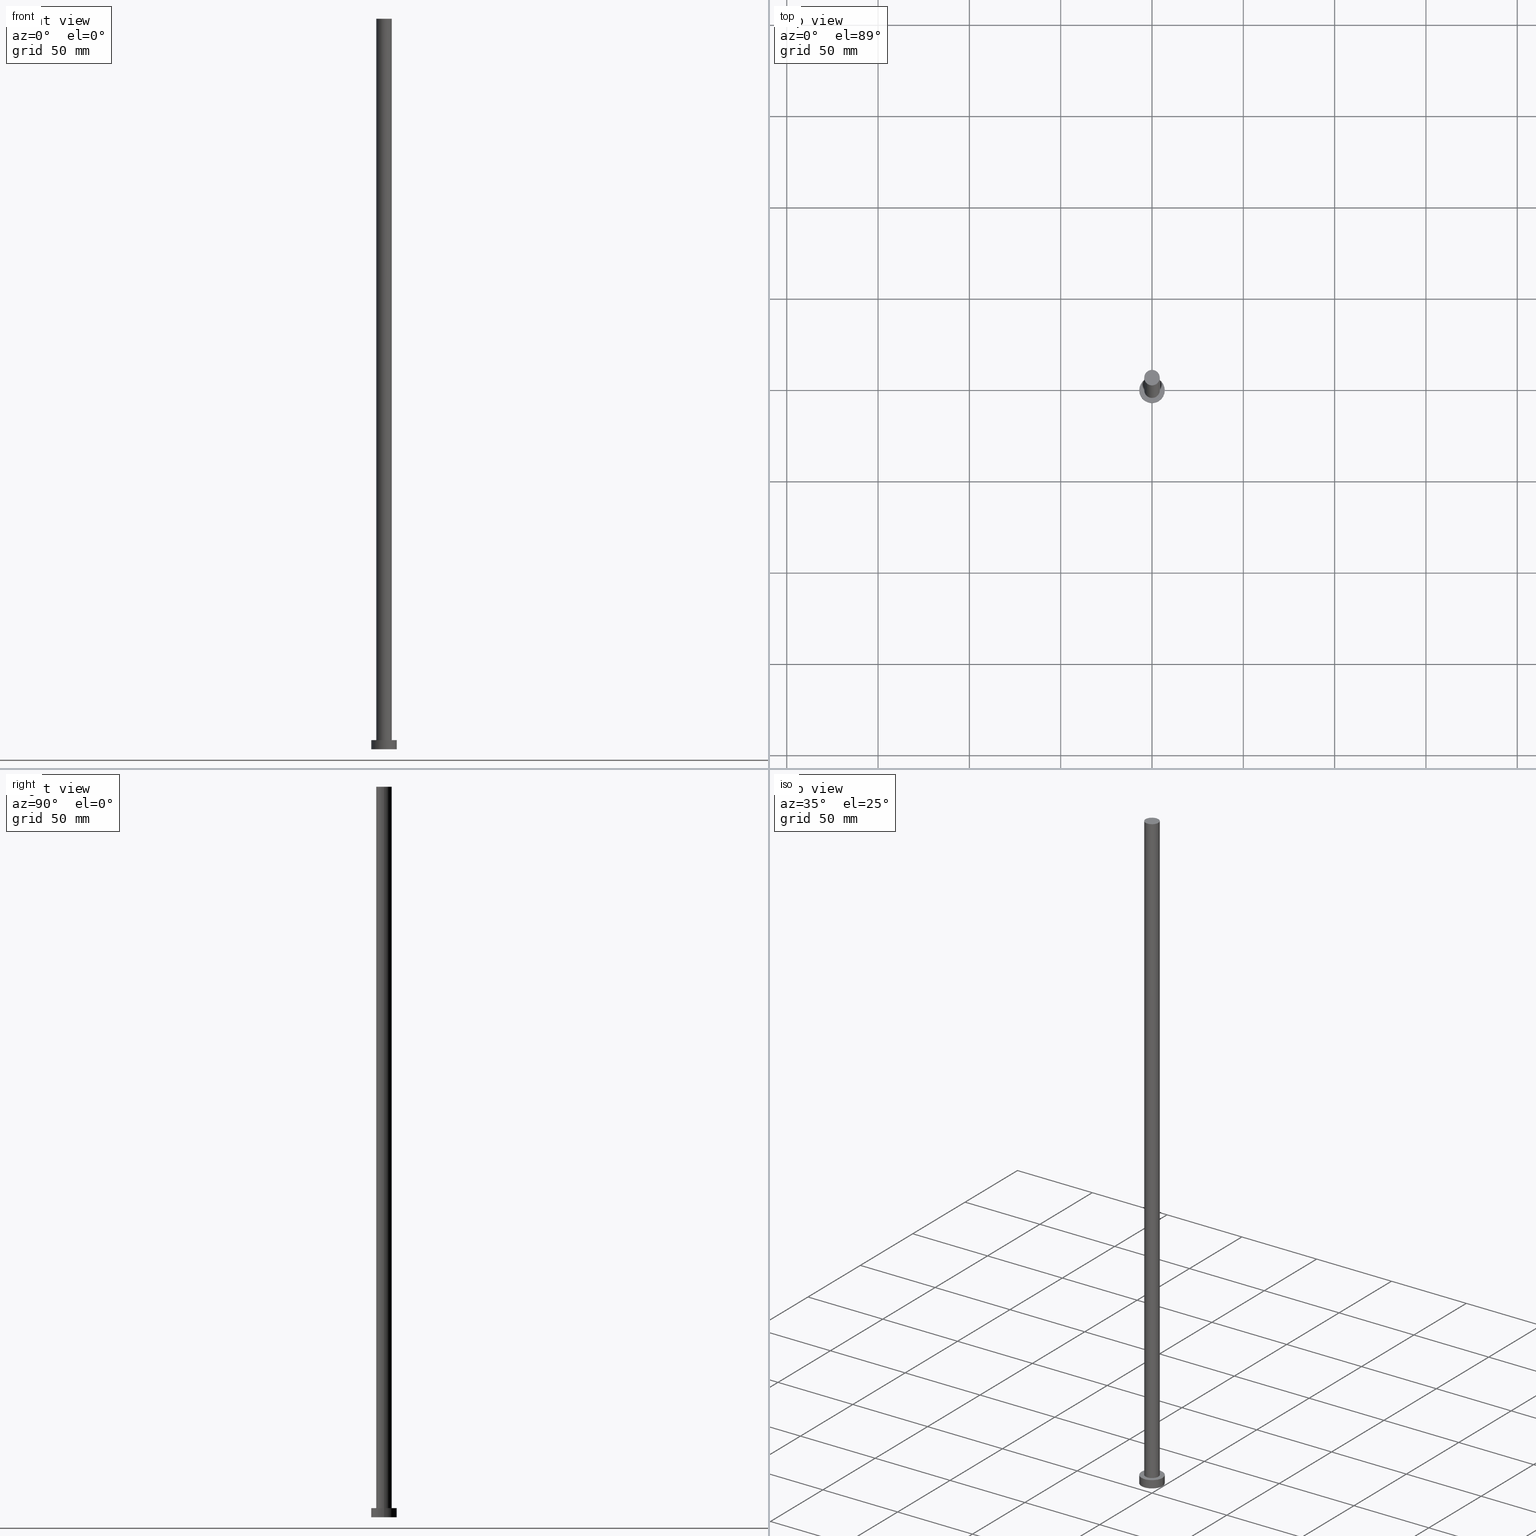
[diagram: canonical four-view strip — front | top / right | iso, engineering-drawing reading convention]
A machine part, canonical four-view strip (front | top / right | iso — engineering-drawing reading convention). The complete STEP part file that produces these views, byte-faithful:
ISO-10303-21;
HEADER;
FILE_DESCRIPTION (( 'STEP AP203' ),
    '1' );
FILE_NAME ('ba1e.STEP',
    '2023-02-12T11:09:58',
    ( '' ),
    ( '' ),
    'SwSTEP 2.0',
    'SolidWorks 2019',
    '' );
FILE_SCHEMA (( 'CONFIG_CONTROL_DESIGN' ));
ENDSEC;

DATA;
#1 = FACE_OUTER_BOUND ( 'NONE', #241, .T. ) ;
#2 = LOCAL_TIME ( 12, 9, 57.00000000000000000, #186 ) ;
#3 = DIRECTION ( 'NONE',  ( 0.000000000000000000, 0.000000000000000000, 1.000000000000000000 ) ) ;
#4 = CARTESIAN_POINT ( 'NONE',  ( -4.250000000000000000, 0.000000000000000000, 5.000000000000000000 ) ) ;
#5 = CARTESIAN_POINT ( 'NONE',  ( 0.000000000000000000, 0.000000000000000000, 5.000000000000000000 ) ) ;
#6 = EDGE_CURVE ( 'NONE', #70, #217, #150, .T. ) ;
#7 = FACE_OUTER_BOUND ( 'NONE', #199, .T. ) ;
#8 = APPROVAL ( #37, 'NEUR�EN�' ) ;
#9 = ORIENTED_EDGE ( 'NONE', *, *, #6, .T. ) ;
#10 = CARTESIAN_POINT ( 'NONE',  ( 0.000000000000000000, 0.000000000000000000, 0.000000000000000000 ) ) ;
#11 = COORDINATED_UNIVERSAL_TIME_OFFSET ( 1, 0, .AHEAD. ) ;
#12 = CARTESIAN_POINT ( 'NONE',  ( -7.000000000000000000, 0.000000000000000000, 5.000000000000000000 ) ) ;
#13 = DIRECTION ( 'NONE',  ( 0.000000000000000000, 0.000000000000000000, 1.000000000000000000 ) ) ;
#14 = DATE_AND_TIME ( #205, #35 ) ;
#15 = LOCAL_TIME ( 12, 9, 57.00000000000000000, #95 ) ;
#16 = CYLINDRICAL_SURFACE ( 'NONE', #167, 7.000000000000000000 ) ;
#17 = DESIGN_CONTEXT ( 'detailed design', #210, 'design' ) ;
#18 = PERSON_AND_ORGANIZATION ( #151, #46 ) ;
#19 = CIRCLE ( 'NONE', #134, 4.250000000000000000 ) ;
#20 = DIRECTION ( 'NONE',  ( 1.000000000000000000, 0.000000000000000000, -0.000000000000000000 ) ) ;
#21 = ORIENTED_EDGE ( 'NONE', *, *, #207, .F. ) ;
#22 = CIRCLE ( 'NONE', #126, 7.000000000000000000 ) ;
#23 = EDGE_CURVE ( 'NONE', #155, #250, #99, .T. ) ;
#24 = ORIENTED_EDGE ( 'NONE', *, *, #44, .T. ) ;
#25 = PLANE ( 'NONE',  #43 ) ;
#26 = ORIENTED_EDGE ( 'NONE', *, *, #23, .T. ) ;
#27 = CC_DESIGN_PERSON_AND_ORGANIZATION_ASSIGNMENT ( #77, #237, ( #60 ) ) ;
#28 = CALENDAR_DATE ( 2023, 12, 2 ) ;
#29 = CARTESIAN_POINT ( 'NONE',  ( 0.000000000000000000, 0.000000000000000000, 400.0000000000000000 ) ) ;
#30 = DATE_AND_TIME ( #227, #2 ) ;
#31 = PRODUCT ( 'ba1e', 'ba1e', '', ( #108 ) ) ;
#32 = DIRECTION ( 'NONE',  ( 0.000000000000000000, 0.000000000000000000, 1.000000000000000000 ) ) ;
#33 = PERSON_AND_ORGANIZATION_ROLE ( 'design_owner' ) ;
#34 = CARTESIAN_POINT ( 'NONE',  ( 0.000000000000000000, 0.000000000000000000, 400.0000000000000000 ) ) ;
#35 = LOCAL_TIME ( 12, 9, 57.00000000000000000, #91 ) ;
#36 = DIRECTION ( 'NONE',  ( 0.000000000000000000, 0.000000000000000000, 1.000000000000000000 ) ) ;
#37 = APPROVAL_STATUS ( 'not_yet_approved' ) ;
#38 = CARTESIAN_POINT ( 'NONE',  ( 4.250000000000000000, 5.204748896376249713E-16, 400.0000000000000000 ) ) ;
#39 = LINE ( 'NONE', #206, #179 ) ;
#40 = AXIS2_PLACEMENT_3D ( 'NONE', #102, #3, #20 ) ;
#41 = DIRECTION ( 'NONE',  ( -0.000000000000000000, -0.000000000000000000, -1.000000000000000000 ) ) ;
#42 = CARTESIAN_POINT ( 'NONE',  ( 0.000000000000000000, 0.000000000000000000, 5.000000000000000000 ) ) ;
#43 = AXIS2_PLACEMENT_3D ( 'NONE', #106, #83, #234 ) ;
#44 = EDGE_CURVE ( 'NONE', #250, #155, #19, .T. ) ;
#45 = ORIENTED_EDGE ( 'NONE', *, *, #114, .T. ) ;
#46 = ORGANIZATION ( 'NEUR�EN�', 'NEUR�EN�', '' ) ;
#47 = EDGE_LOOP ( 'NONE', ( #90, #224, #24, #21 ) ) ;
#48 = EDGE_LOOP ( 'NONE', ( #220, #45 ) ) ;
#49 = AXIS2_PLACEMENT_3D ( 'NONE', #29, #74, #113 ) ;
#50 = DIRECTION ( 'NONE',  ( 0.000000000000000000, 0.000000000000000000, 1.000000000000000000 ) ) ;
#51 = CIRCLE ( 'NONE', #238, 7.000000000000000000 ) ;
#52 = CC_DESIGN_APPROVAL ( #125, ( #158 ) ) ;
#53 = PERSON_AND_ORGANIZATION_ROLE ( 'design_supplier' ) ;
#54 = PLANE ( 'NONE',  #40 ) ;
#55 = DATE_AND_TIME ( #28, #175 ) ;
#56 = CC_DESIGN_PERSON_AND_ORGANIZATION_ASSIGNMENT ( #240, #76, ( #161 ) ) ;
#57 = DIRECTION ( 'NONE',  ( -1.000000000000000000, 0.000000000000000000, 0.000000000000000000 ) ) ;
#58 = FACE_OUTER_BOUND ( 'NONE', #110, .T. ) ;
#59 = LINE ( 'NONE', #214, #122 ) ;
#60 = PRODUCT_DEFINITION_FORMATION_WITH_SPECIFIED_SOURCE ( 'LIBOVOLN�', '', #31, .NOT_KNOWN. ) ;
#61 = DIRECTION ( 'NONE',  ( 0.000000000000000000, 0.000000000000000000, 1.000000000000000000 ) ) ;
#62 = EDGE_CURVE ( 'NONE', #217, #70, #173, .T. ) ;
#63 = CLOSED_SHELL ( 'NONE', ( #69, #146, #218, #103, #246, #128, #138 ) ) ;
#64 = AXIS2_PLACEMENT_3D ( 'NONE', #245, #61, #255 ) ;
#65 =( LENGTH_UNIT ( ) NAMED_UNIT ( * ) SI_UNIT ( .MILLI., .METRE. ) );
#66 = ORIENTED_EDGE ( 'NONE', *, *, #188, .F. ) ;
#67 = DIRECTION ( 'NONE',  ( 0.000000000000000000, 0.000000000000000000, 1.000000000000000000 ) ) ;
#68 = DIRECTION ( 'NONE',  ( -1.000000000000000000, 0.000000000000000000, 0.000000000000000000 ) ) ;
#69 = ADVANCED_FACE ( 'NONE', ( #136 ), #222, .T. ) ;
#70 = VERTEX_POINT ( 'NONE', #204 ) ;
#71 = PERSON_AND_ORGANIZATION_ROLE ( 'creator' ) ;
#72 = FACE_OUTER_BOUND ( 'NONE', #48, .T. ) ;
#73 = PERSON_AND_ORGANIZATION ( #151, #46 ) ;
#74 = DIRECTION ( 'NONE',  ( -0.000000000000000000, -0.000000000000000000, -1.000000000000000000 ) ) ;
#75 = CC_DESIGN_PERSON_AND_ORGANIZATION_ASSIGNMENT ( #144, #71, ( #158 ) ) ;
#76 = PERSON_AND_ORGANIZATION_ROLE ( 'classification_officer' ) ;
#77 = PERSON_AND_ORGANIZATION ( #151, #46 ) ;
#78 = DIRECTION ( 'NONE',  ( 0.000000000000000000, 0.000000000000000000, 1.000000000000000000 ) ) ;
#79 = VECTOR ( 'NONE', #183, 1000.000000000000000 ) ;
#80 = CIRCLE ( 'NONE', #137, 4.250000000000000000 ) ;
#81 = APPROVAL ( #251, 'NEUR�EN�' ) ;
#82 = DIRECTION ( 'NONE',  ( 1.000000000000000000, 0.000000000000000000, -0.000000000000000000 ) ) ;
#83 = DIRECTION ( 'NONE',  ( 0.000000000000000000, 0.000000000000000000, 1.000000000000000000 ) ) ;
#84 = CC_DESIGN_SECURITY_CLASSIFICATION ( #161, ( #60 ) ) ;
#85 =( NAMED_UNIT ( * ) SI_UNIT ( $, .STERADIAN. ) SOLID_ANGLE_UNIT ( ) );
#86 = EDGE_LOOP ( 'NONE', ( #247, #181, #140, #26 ) ) ;
#87 = AXIS2_PLACEMENT_3D ( 'NONE', #98, #166, #57 ) ;
#88 = CARTESIAN_POINT ( 'NONE',  ( 4.250000000000000000, 5.204748896376249713E-16, 400.0000000000000000 ) ) ;
#89 = EDGE_CURVE ( 'NONE', #130, #217, #254, .T. ) ;
#90 = ORIENTED_EDGE ( 'NONE', *, *, #193, .F. ) ;
#91 = COORDINATED_UNIVERSAL_TIME_OFFSET ( 1, 0, .AHEAD. ) ;
#92 = ORIENTED_EDGE ( 'NONE', *, *, #89, .F. ) ;
#93 = DIRECTION ( 'NONE',  ( 1.000000000000000000, 0.000000000000000000, 0.000000000000000000 ) ) ;
#94 = CC_DESIGN_APPROVAL ( #8, ( #161 ) ) ;
#95 = COORDINATED_UNIVERSAL_TIME_OFFSET ( 1, 0, .AHEAD. ) ;
#96 = PERSON_AND_ORGANIZATION ( #151, #46 ) ;
#97 = APPROVAL_DATE_TIME ( #209, #8 ) ;
#98 = CARTESIAN_POINT ( 'NONE',  ( 0.000000000000000000, 0.000000000000000000, 5.000000000000000000 ) ) ;
#99 = CIRCLE ( 'NONE', #135, 4.250000000000000000 ) ;
#100 = CC_DESIGN_DATE_AND_TIME_ASSIGNMENT ( #14, #182, ( #158 ) ) ;
#101 = FACE_OUTER_BOUND ( 'NONE', #133, .T. ) ;
#102 = CARTESIAN_POINT ( 'NONE',  ( 0.000000000000000000, 0.000000000000000000, 5.000000000000000000 ) ) ;
#103 = ADVANCED_FACE ( 'NONE', ( #252, #72 ), #54, .T. ) ;
#104 = VECTOR ( 'NONE', #116, 1000.000000000000000 ) ;
#105 = UNCERTAINTY_MEASURE_WITH_UNIT (LENGTH_MEASURE( 1.000000000000000082E-05 ), #65, 'distance_accuracy_value', 'NONE');
#106 = CARTESIAN_POINT ( 'NONE',  ( 0.000000000000000000, 0.000000000000000000, 0.000000000000000000 ) ) ;
#107 = VERTEX_POINT ( 'NONE', #120 ) ;
#108 = MECHANICAL_CONTEXT ( 'NONE', #177, 'mechanical' ) ;
#109 = ORIENTED_EDGE ( 'NONE', *, *, #193, .T. ) ;
#110 = EDGE_LOOP ( 'NONE', ( #162, #109 ) ) ;
#111 = CC_DESIGN_APPROVAL ( #81, ( #60 ) ) ;
#112 = APPLICATION_PROTOCOL_DEFINITION ( 'international standard', 'config_control_design', 1994, #210 ) ;
#113 = DIRECTION ( 'NONE',  ( -1.000000000000000000, 0.000000000000000000, 0.000000000000000000 ) ) ;
#114 = EDGE_CURVE ( 'NONE', #127, #130, #51, .T. ) ;
#115 = APPROVAL_STATUS ( 'not_yet_approved' ) ;
#116 = DIRECTION ( 'NONE',  ( -0.000000000000000000, -0.000000000000000000, -1.000000000000000000 ) ) ;
#117 = APPROVAL_DATE_TIME ( #55, #125 ) ;
#118 = CYLINDRICAL_SURFACE ( 'NONE', #231, 4.250000000000000000 ) ;
#119 = APPROVAL_ROLE ( '' ) ;
#120 = CARTESIAN_POINT ( 'NONE',  ( -4.250000000000000000, 0.000000000000000000, 400.0000000000000000 ) ) ;
#121 = DIRECTION ( 'NONE',  ( -0.000000000000000000, -0.000000000000000000, -1.000000000000000000 ) ) ;
#122 = VECTOR ( 'NONE', #187, 1000.000000000000000 ) ;
#123 = LOCAL_TIME ( 12, 9, 57.00000000000000000, #163 ) ;
#124 = CARTESIAN_POINT ( 'NONE',  ( 0.000000000000000000, 0.000000000000000000, 400.0000000000000000 ) ) ;
#125 = APPROVAL ( #115, 'NEUR�EN�' ) ;
#126 = AXIS2_PLACEMENT_3D ( 'NONE', #191, #36, #147 ) ;
#127 = VERTEX_POINT ( 'NONE', #169 ) ;
#128 = ADVANCED_FACE ( 'NONE', ( #229 ), #118, .T. ) ;
#129 = CARTESIAN_POINT ( 'NONE',  ( 4.250000000000000000, 5.204748896376249713E-16, 5.000000000000000000 ) ) ;
#130 = VERTEX_POINT ( 'NONE', #226 ) ;
#131 = DIRECTION ( 'NONE',  ( 1.000000000000000000, 0.000000000000000000, 0.000000000000000000 ) ) ;
#132 = ORIENTED_EDGE ( 'NONE', *, *, #62, .T. ) ;
#133 = EDGE_LOOP ( 'NONE', ( #160, #66, #148, #132 ) ) ;
#134 = AXIS2_PLACEMENT_3D ( 'NONE', #235, #13, #93 ) ;
#135 = AXIS2_PLACEMENT_3D ( 'NONE', #201, #32, #156 ) ;
#136 = FACE_OUTER_BOUND ( 'NONE', #47, .T. ) ;
#137 = AXIS2_PLACEMENT_3D ( 'NONE', #34, #228, #244 ) ;
#138 = ADVANCED_FACE ( 'NONE', ( #58 ), #243, .T. ) ;
#139 = SECURITY_CLASSIFICATION_LEVEL ( 'unclassified' ) ;
#140 = ORIENTED_EDGE ( 'NONE', *, *, #207, .T. ) ;
#141 = DATE_TIME_ROLE ( 'classification_date' ) ;
#142 = CALENDAR_DATE ( 2023, 12, 2 ) ;
#143 = DIRECTION ( 'NONE',  ( 1.000000000000000000, 0.000000000000000000, 0.000000000000000000 ) ) ;
#144 = PERSON_AND_ORGANIZATION ( #151, #46 ) ;
#145 = PRODUCT_RELATED_PRODUCT_CATEGORY ( 'detail', '', ( #31 ) ) ;
#146 = ADVANCED_FACE ( 'NONE', ( #1 ), #171, .T. ) ;
#147 = DIRECTION ( 'NONE',  ( 1.000000000000000000, 0.000000000000000000, 0.000000000000000000 ) ) ;
#148 = ORIENTED_EDGE ( 'NONE', *, *, #89, .T. ) ;
#149 = ORIENTED_EDGE ( 'NONE', *, *, #62, .F. ) ;
#150 = CIRCLE ( 'NONE', #200, 7.000000000000000000 ) ;
#151 = PERSON ( 'NEUR�EN�', 'NEUR�EN�', 'NEUR�EN�', ('NEUR�EN�'), ('NEUR�EN�'), ('NEUR�EN�') ) ;
#152 = PRODUCT_DEFINITION_SHAPE ( 'NONE', 'NONE',  #158 ) ;
#153 = CARTESIAN_POINT ( 'NONE',  ( 0.000000000000000000, 0.000000000000000000, 0.000000000000000000 ) ) ;
#154 = EDGE_CURVE ( 'NONE', #127, #70, #59, .T. ) ;
#155 = VERTEX_POINT ( 'NONE', #4 ) ;
#156 = DIRECTION ( 'NONE',  ( 1.000000000000000000, 0.000000000000000000, 0.000000000000000000 ) ) ;
#157 = DIRECTION ( 'NONE',  ( 1.000000000000000000, 0.000000000000000000, 0.000000000000000000 ) ) ;
#158 = PRODUCT_DEFINITION ( 'NEZN�M�', '', #60, #17 ) ;
#159 = APPROVAL_ROLE ( '' ) ;
#160 = ORIENTED_EDGE ( 'NONE', *, *, #154, .F. ) ;
#161 = SECURITY_CLASSIFICATION ( '', '', #139 ) ;
#162 = ORIENTED_EDGE ( 'NONE', *, *, #180, .T. ) ;
#163 = COORDINATED_UNIVERSAL_TIME_OFFSET ( 1, 0, .AHEAD. ) ;
#164 = CARTESIAN_POINT ( 'NONE',  ( -7.000000000000000000, 0.000000000000000000, 0.000000000000000000 ) ) ;
#165 = CALENDAR_DATE ( 2023, 12, 2 ) ;
#166 = DIRECTION ( 'NONE',  ( -0.000000000000000000, -0.000000000000000000, -1.000000000000000000 ) ) ;
#167 = AXIS2_PLACEMENT_3D ( 'NONE', #42, #197, #68 ) ;
#168 = DIRECTION ( 'NONE',  ( -1.000000000000000000, 0.000000000000000000, 0.000000000000000000 ) ) ;
#169 = CARTESIAN_POINT ( 'NONE',  ( 7.000000000000000000, 8.572527594031473190E-16, 5.000000000000000000 ) ) ;
#170 = CC_DESIGN_PERSON_AND_ORGANIZATION_ASSIGNMENT ( #223, #33, ( #31 ) ) ;
#171 = CYLINDRICAL_SURFACE ( 'NONE', #87, 7.000000000000000000 ) ;
#172 = ADVANCED_BREP_SHAPE_REPRESENTATION ( 'ba1e', ( #185, #192 ), #232 ) ;
#173 = CIRCLE ( 'NONE', #174, 7.000000000000000000 ) ;
#174 = AXIS2_PLACEMENT_3D ( 'NONE', #10, #50, #236 ) ;
#175 = LOCAL_TIME ( 12, 9, 57.00000000000000000, #11 ) ;
#176 = ORIENTED_EDGE ( 'NONE', *, *, #23, .F. ) ;
#177 = APPLICATION_CONTEXT ( 'configuration controlled 3d designs of mechanical parts and assemblies' ) ;
#178 = DIRECTION ( 'NONE',  ( 0.000000000000000000, 0.000000000000000000, 1.000000000000000000 ) ) ;
#179 = VECTOR ( 'NONE', #121, 1000.000000000000000 ) ;
#180 = EDGE_CURVE ( 'NONE', #107, #221, #216, .T. ) ;
#181 = ORIENTED_EDGE ( 'NONE', *, *, #180, .F. ) ;
#182 = DATE_TIME_ROLE ( 'creation_date' ) ;
#183 = DIRECTION ( 'NONE',  ( -0.000000000000000000, -0.000000000000000000, -1.000000000000000000 ) ) ;
#184 = ORIENTED_EDGE ( 'NONE', *, *, #44, .F. ) ;
#185 = MANIFOLD_SOLID_BREP ( 'P�idat vysunut�m3', #63 ) ;
#186 = COORDINATED_UNIVERSAL_TIME_OFFSET ( 1, 0, .AHEAD. ) ;
#187 = DIRECTION ( 'NONE',  ( -0.000000000000000000, -0.000000000000000000, -1.000000000000000000 ) ) ;
#188 = EDGE_CURVE ( 'NONE', #130, #127, #22, .T. ) ;
#189 = APPROVAL_ROLE ( '' ) ;
#190 = DIRECTION ( 'NONE',  ( 0.000000000000000000, 0.000000000000000000, 1.000000000000000000 ) ) ;
#191 = CARTESIAN_POINT ( 'NONE',  ( 0.000000000000000000, 0.000000000000000000, 5.000000000000000000 ) ) ;
#192 = AXIS2_PLACEMENT_3D ( 'NONE', #153, #178, #131 ) ;
#193 = EDGE_CURVE ( 'NONE', #221, #107, #80, .T. ) ;
#194 = CARTESIAN_POINT ( 'NONE',  ( 0.000000000000000000, 0.000000000000000000, 400.0000000000000000 ) ) ;
#195 = APPROVAL_PERSON_ORGANIZATION ( #73, #125, #119 ) ;
#196 = CC_DESIGN_PERSON_AND_ORGANIZATION_ASSIGNMENT ( #96, #53, ( #60 ) ) ;
#197 = DIRECTION ( 'NONE',  ( -0.000000000000000000, -0.000000000000000000, -1.000000000000000000 ) ) ;
#198 = ORIENTED_EDGE ( 'NONE', *, *, #154, .T. ) ;
#199 = EDGE_LOOP ( 'NONE', ( #149, #248 ) ) ;
#200 = AXIS2_PLACEMENT_3D ( 'NONE', #249, #67, #157 ) ;
#201 = CARTESIAN_POINT ( 'NONE',  ( 0.000000000000000000, 0.000000000000000000, 5.000000000000000000 ) ) ;
#202 = PERSON_AND_ORGANIZATION ( #151, #46 ) ;
#203 = EDGE_CURVE ( 'NONE', #221, #250, #212, .T. ) ;
#204 = CARTESIAN_POINT ( 'NONE',  ( 7.000000000000000000, 8.572527594031473190E-16, 0.000000000000000000 ) ) ;
#205 = CALENDAR_DATE ( 2023, 12, 2 ) ;
#206 = CARTESIAN_POINT ( 'NONE',  ( -4.250000000000000000, 0.000000000000000000, 400.0000000000000000 ) ) ;
#207 = EDGE_CURVE ( 'NONE', #107, #155, #39, .T. ) ;
#208 = APPROVAL_PERSON_ORGANIZATION ( #18, #8, #189 ) ;
#209 = DATE_AND_TIME ( #165, #123 ) ;
#210 = APPLICATION_CONTEXT ( 'configuration controlled 3d designs of mechanical parts and assemblies' ) ;
#211 = APPROVAL_DATE_TIME ( #225, #81 ) ;
#212 = LINE ( 'NONE', #38, #104 ) ;
#213 = APPROVAL_PERSON_ORGANIZATION ( #202, #81, #159 ) ;
#214 = CARTESIAN_POINT ( 'NONE',  ( 7.000000000000000000, 8.572527594031473190E-16, 5.000000000000000000 ) ) ;
#215 = CC_DESIGN_DATE_AND_TIME_ASSIGNMENT ( #30, #141, ( #161 ) ) ;
#216 = CIRCLE ( 'NONE', #64, 4.250000000000000000 ) ;
#217 = VERTEX_POINT ( 'NONE', #164 ) ;
#218 = ADVANCED_FACE ( 'NONE', ( #101 ), #16, .T. ) ;
#219 = APPLICATION_PROTOCOL_DEFINITION ( 'international standard', 'config_control_design', 1994, #177 ) ;
#220 = ORIENTED_EDGE ( 'NONE', *, *, #188, .T. ) ;
#221 = VERTEX_POINT ( 'NONE', #88 ) ;
#222 = CYLINDRICAL_SURFACE ( 'NONE', #49, 4.250000000000000000 ) ;
#223 = PERSON_AND_ORGANIZATION ( #151, #46 ) ;
#224 = ORIENTED_EDGE ( 'NONE', *, *, #203, .T. ) ;
#225 = DATE_AND_TIME ( #142, #15 ) ;
#226 = CARTESIAN_POINT ( 'NONE',  ( -7.000000000000000000, 0.000000000000000000, 5.000000000000000000 ) ) ;
#227 = CALENDAR_DATE ( 2023, 12, 2 ) ;
#228 = DIRECTION ( 'NONE',  ( 0.000000000000000000, 0.000000000000000000, 1.000000000000000000 ) ) ;
#229 = FACE_OUTER_BOUND ( 'NONE', #86, .T. ) ;
#230 =( NAMED_UNIT ( * ) PLANE_ANGLE_UNIT ( ) SI_UNIT ( $, .RADIAN. ) );
#231 = AXIS2_PLACEMENT_3D ( 'NONE', #194, #41, #168 ) ;
#232 =( GEOMETRIC_REPRESENTATION_CONTEXT ( 3 ) GLOBAL_UNCERTAINTY_ASSIGNED_CONTEXT ( ( #105 ) ) GLOBAL_UNIT_ASSIGNED_CONTEXT ( ( #65, #230, #85 ) ) REPRESENTATION_CONTEXT ( 'NONE', 'WORKASPACE' ) );
#233 = EDGE_LOOP ( 'NONE', ( #176, #184 ) ) ;
#234 = DIRECTION ( 'NONE',  ( 1.000000000000000000, 0.000000000000000000, -0.000000000000000000 ) ) ;
#235 = CARTESIAN_POINT ( 'NONE',  ( 0.000000000000000000, 0.000000000000000000, 5.000000000000000000 ) ) ;
#236 = DIRECTION ( 'NONE',  ( 1.000000000000000000, 0.000000000000000000, 0.000000000000000000 ) ) ;
#237 = PERSON_AND_ORGANIZATION_ROLE ( 'creator' ) ;
#238 = AXIS2_PLACEMENT_3D ( 'NONE', #5, #78, #143 ) ;
#239 = ORIENTED_EDGE ( 'NONE', *, *, #114, .F. ) ;
#240 = PERSON_AND_ORGANIZATION ( #151, #46 ) ;
#241 = EDGE_LOOP ( 'NONE', ( #239, #198, #9, #92 ) ) ;
#242 = SHAPE_DEFINITION_REPRESENTATION ( #152, #172 ) ;
#243 = PLANE ( 'NONE',  #253 ) ;
#244 = DIRECTION ( 'NONE',  ( 1.000000000000000000, 0.000000000000000000, 0.000000000000000000 ) ) ;
#245 = CARTESIAN_POINT ( 'NONE',  ( 0.000000000000000000, 0.000000000000000000, 400.0000000000000000 ) ) ;
#246 = ADVANCED_FACE ( 'NONE', ( #7 ), #25, .F. ) ;
#247 = ORIENTED_EDGE ( 'NONE', *, *, #203, .F. ) ;
#248 = ORIENTED_EDGE ( 'NONE', *, *, #6, .F. ) ;
#249 = CARTESIAN_POINT ( 'NONE',  ( 0.000000000000000000, 0.000000000000000000, 0.000000000000000000 ) ) ;
#250 = VERTEX_POINT ( 'NONE', #129 ) ;
#251 = APPROVAL_STATUS ( 'not_yet_approved' ) ;
#252 = FACE_BOUND ( 'NONE', #233, .T. ) ;
#253 = AXIS2_PLACEMENT_3D ( 'NONE', #124, #190, #82 ) ;
#254 = LINE ( 'NONE', #12, #79 ) ;
#255 = DIRECTION ( 'NONE',  ( 1.000000000000000000, 0.000000000000000000, 0.000000000000000000 ) ) ;
ENDSEC;
END-ISO-10303-21;
